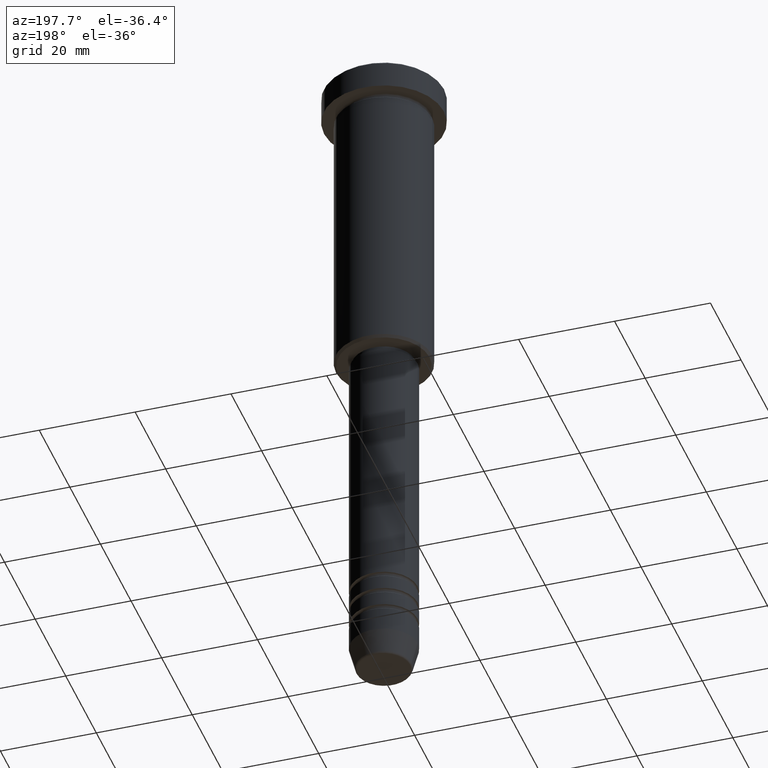
[diagram: clean part render]
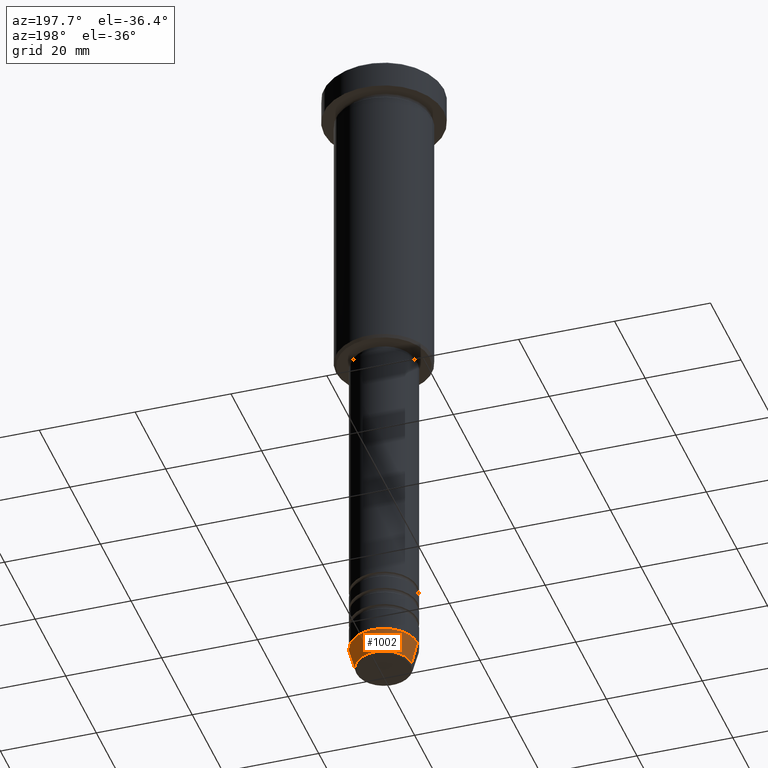
[diagram: same view with one face highlighted and labeled with its STEP entity id]
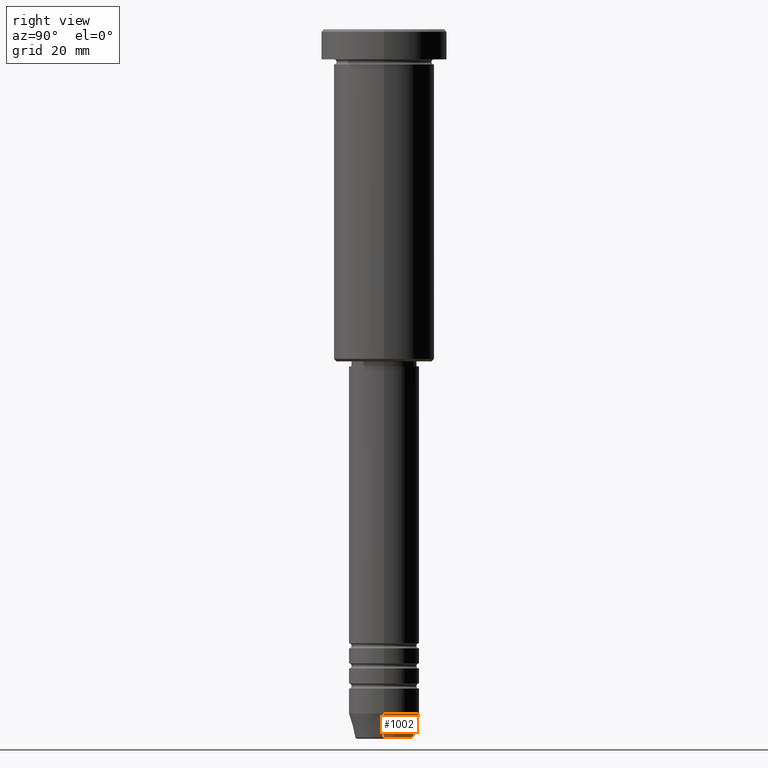
[diagram: same view with one face highlighted and labeled with its STEP entity id]
A machine part, auxiliary view. The second image highlights one B-rep face of the part: STEP entity #1002.
A second angle (right view) of the same face is appended — the face is thin or edge-on in the first view.
In plain terms, the highlighted conical surface has half-angle 15 deg.
Its self-contained STEP definition (entity closure, byte-faithful):
#50 = DIRECTION ( 'NONE',  ( -0.000000000000000000, -0.000000000000000000, 1.000000000000000000 ) ) ;
#86 = DIRECTION ( 'NONE',  ( 1.000000000000000000, 0.000000000000000000, 0.000000000000000000 ) ) ;
#97 = CARTESIAN_POINT ( 'NONE',  ( -7.000000000000000000, 8.572527594031473190E-16, -136.0000000000000000 ) ) ;
#201 = AXIS2_PLACEMENT_3D ( 'NONE', #638, #536, #86 ) ;
#231 = VERTEX_POINT ( 'NONE', #1006 ) ;
#255 = ORIENTED_EDGE ( 'NONE', *, *, #998, .T. ) ;
#264 = CARTESIAN_POINT ( 'NONE',  ( -7.000000000000000000, 8.572527594031473190E-16, -136.0000000000000000 ) ) ;
#267 = CONICAL_SURFACE ( 'NONE', #790, 7.000000000000000000, 0.2617993877991500740 ) ;
#329 = DIRECTION ( 'NONE',  ( 0.2588190451025213501, 0.000000000000000000, 0.9659258262890680902 ) ) ;
#362 = CIRCLE ( 'NONE', #979, 5.759553456999435994 ) ;
#416 = VECTOR ( 'NONE', #329, 1000.000000000000000 ) ;
#448 = ORIENTED_EDGE ( 'NONE', *, *, #583, .T. ) ;
#463 = EDGE_CURVE ( 'NONE', #551, #631, #795, .T. ) ;
#502 = CARTESIAN_POINT ( 'NONE',  ( 7.000000000000000000, 0.000000000000000000, -136.0000000000000000 ) ) ;
#508 = FACE_OUTER_BOUND ( 'NONE', #796, .T. ) ;
#536 = DIRECTION ( 'NONE',  ( -0.000000000000000000, -0.000000000000000000, 1.000000000000000000 ) ) ;
#551 = VERTEX_POINT ( 'NONE', #993 ) ;
#555 = CARTESIAN_POINT ( 'NONE',  ( 7.000000000000000000, 0.000000000000000000, -136.0000000000000000 ) ) ;
#568 = CIRCLE ( 'NONE', #201, 7.000000000000000000 ) ;
#583 = EDGE_CURVE ( 'NONE', #231, #1049, #1108, .T. ) ;
#631 = VERTEX_POINT ( 'NONE', #555 ) ;
#632 = VECTOR ( 'NONE', #847, 1000.000000000000000 ) ;
#638 = CARTESIAN_POINT ( 'NONE',  ( 0.000000000000000000, 0.000000000000000000, -136.0000000000000000 ) ) ;
#711 = CARTESIAN_POINT ( 'NONE',  ( 0.000000000000000000, 0.000000000000000000, -140.6294095225512706 ) ) ;
#790 = AXIS2_PLACEMENT_3D ( 'NONE', #1075, #50, #992 ) ;
#795 = LINE ( 'NONE', #502, #416 ) ;
#796 = EDGE_LOOP ( 'NONE', ( #255, #448, #964, #968 ) ) ;
#811 = DIRECTION ( 'NONE',  ( 1.000000000000000000, 0.000000000000000000, 0.000000000000000000 ) ) ;
#847 = DIRECTION ( 'NONE',  ( -0.2588190451025213501, 3.169619151431772337E-17, 0.9659258262890680902 ) ) ;
#964 = ORIENTED_EDGE ( 'NONE', *, *, #1044, .F. ) ;
#968 = ORIENTED_EDGE ( 'NONE', *, *, #463, .F. ) ;
#971 = DIRECTION ( 'NONE',  ( -0.000000000000000000, -0.000000000000000000, 1.000000000000000000 ) ) ;
#979 = AXIS2_PLACEMENT_3D ( 'NONE', #711, #971, #811 ) ;
#992 = DIRECTION ( 'NONE',  ( 1.000000000000000000, 0.000000000000000000, 0.000000000000000000 ) ) ;
#993 = CARTESIAN_POINT ( 'NONE',  ( 5.759553456999435994, 0.000000000000000000, -140.6294095225512706 ) ) ;
#998 = EDGE_CURVE ( 'NONE', #551, #231, #362, .T. ) ;
#1002 = ADVANCED_FACE ( 'NONE', ( #508 ), #267, .T. ) ;
#1006 = CARTESIAN_POINT ( 'NONE',  ( -5.759553456999435994, 7.812973149831951773E-16, -140.6294095225512706 ) ) ;
#1044 = EDGE_CURVE ( 'NONE', #631, #1049, #568, .T. ) ;
#1049 = VERTEX_POINT ( 'NONE', #264 ) ;
#1075 = CARTESIAN_POINT ( 'NONE',  ( 0.000000000000000000, 0.000000000000000000, -136.0000000000000000 ) ) ;
#1108 = LINE ( 'NONE', #97, #632 ) ;